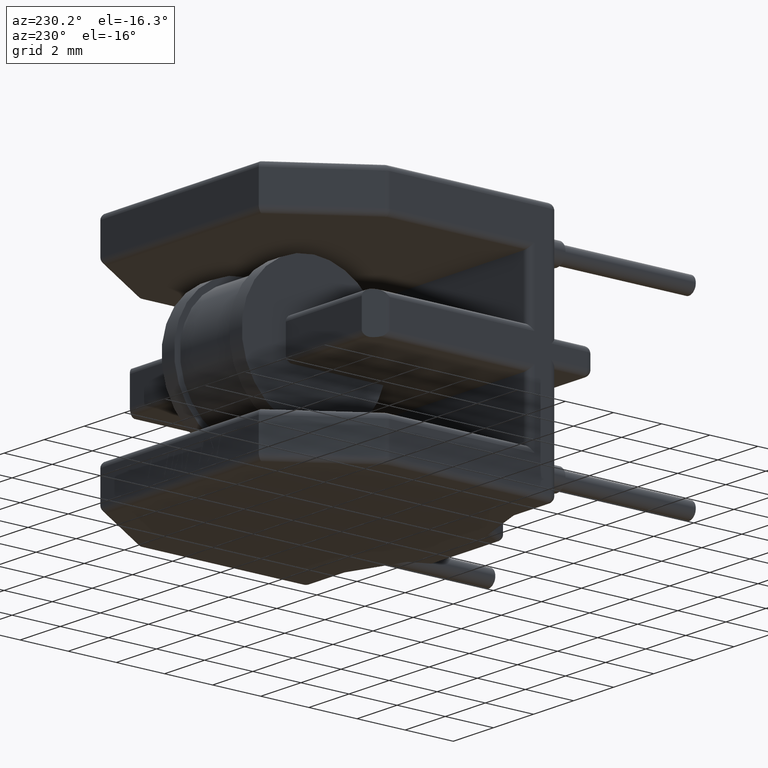
[diagram: clean part render]
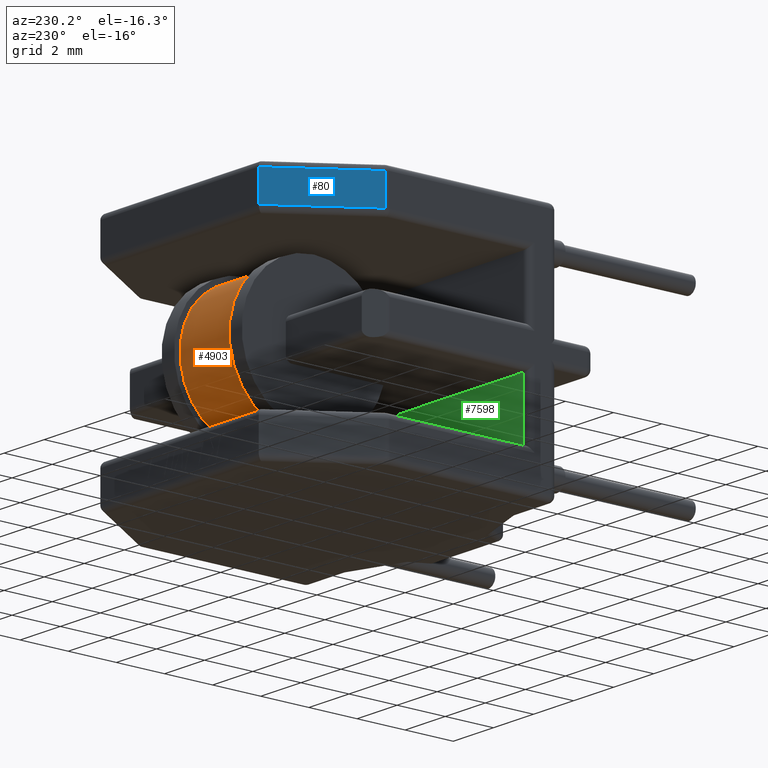
[diagram: same view with three faces highlighted in distinct colors, each labeled with its STEP entity id]
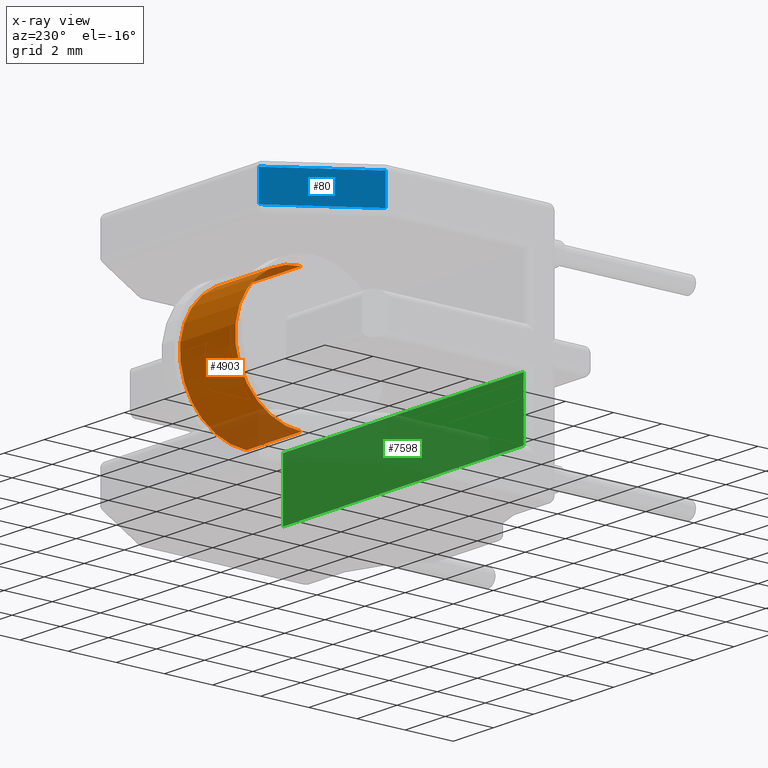
[diagram: x-ray of the same camera — body ghosted, the three highlighted faces saturated]
A machine part, auxiliary view with three faces highlighted in distinct colors.
The next image is the same camera in x-ray (body ghosted, the three faces saturated) — at least one of them is partly hidden behind the body in this view.
Their STEP definitions:

[orange] entity #4903 — the highlighted cylindrical surface (partial cylindrical patch) has radius 2.7545 mm, axis along (-1, -0, -0).
#171 = DIRECTION ( 'NONE',  ( -1.000000000000000000, -0.0000000000000000000, -0.0000000000000000000 ) ) ;
#381 = CARTESIAN_POINT ( 'NONE',  ( 7.624782905637799100, 6.581716576675943600, -5.000000000000000000 ) ) ;
#682 = AXIS2_PLACEMENT_3D ( 'NONE', #381, #3668, #6276 ) ;
#764 = EDGE_CURVE ( 'NONE', #2380, #4618, #3348, .T. ) ;
#827 = DIRECTION ( 'NONE',  ( 0.0000000000000000000, 0.0000000000000000000, 1.000000000000000000 ) ) ;
#853 = ORIENTED_EDGE ( 'NONE', *, *, #6612, .T. ) ;
#1464 = VERTEX_POINT ( 'NONE', #2863 ) ;
#1484 = VECTOR ( 'NONE', #6370, 1000.000000000000000 ) ;
#2287 = ORIENTED_EDGE ( 'NONE', *, *, #3320, .T. ) ;
#2340 = EDGE_CURVE ( 'NONE', #3090, #2380, #7798, .T. ) ;
#2378 = CYLINDRICAL_SURFACE ( 'NONE', #4887, 2.754477368955190000 ) ;
#2380 = VERTEX_POINT ( 'NONE', #2767 ) ;
#2767 = CARTESIAN_POINT ( 'NONE',  ( 4.875217094362201700, 6.581716576675943600, -2.245522631044810000 ) ) ;
#2863 = CARTESIAN_POINT ( 'NONE',  ( 7.624782905637799100, 6.581716576675943600, -7.754477368955190500 ) ) ;
#3090 = VERTEX_POINT ( 'NONE', #6807 ) ;
#3320 = EDGE_CURVE ( 'NONE', #1464, #4618, #6935, .T. ) ;
#3348 = CIRCLE ( 'NONE', #7380, 2.754477368955190000 ) ;
#3668 = DIRECTION ( 'NONE',  ( -1.000000000000000000, -0.0000000000000000000, -0.0000000000000000000 ) ) ;
#3799 = CARTESIAN_POINT ( 'NONE',  ( 4.249999999999999100, 6.581716576675943600, -5.000000000000000000 ) ) ;
#4048 = CARTESIAN_POINT ( 'NONE',  ( 4.875217094362201700, 6.581716576675943600, -5.000000000000000000 ) ) ;
#4448 = DIRECTION ( 'NONE',  ( -1.000000000000000000, -0.0000000000000000000, -0.0000000000000000000 ) ) ;
#4507 = ORIENTED_EDGE ( 'NONE', *, *, #764, .F. ) ;
#4523 = CARTESIAN_POINT ( 'NONE',  ( 4.249999999999999100, 6.581716576675943600, -7.754477368955190500 ) ) ;
#4618 = VERTEX_POINT ( 'NONE', #8179 ) ;
#4887 = AXIS2_PLACEMENT_3D ( 'NONE', #3799, #4448, #5785 ) ;
#4903 = ADVANCED_FACE ( 'NONE', ( #6212 ), #2378, .T. ) ;
#4964 = EDGE_LOOP ( 'NONE', ( #853, #2287, #4507, #6289 ) ) ;
#5785 = DIRECTION ( 'NONE',  ( 0.0000000000000000000, 0.0000000000000000000, 1.000000000000000000 ) ) ;
#5888 = VECTOR ( 'NONE', #7951, 1000.000000000000000 ) ;
#6212 = FACE_OUTER_BOUND ( 'NONE', #4964, .T. ) ;
#6276 = DIRECTION ( 'NONE',  ( 0.0000000000000000000, 0.0000000000000000000, 1.000000000000000000 ) ) ;
#6289 = ORIENTED_EDGE ( 'NONE', *, *, #2340, .F. ) ;
#6370 = DIRECTION ( 'NONE',  ( -1.000000000000000000, -0.0000000000000000000, -0.0000000000000000000 ) ) ;
#6612 = EDGE_CURVE ( 'NONE', #3090, #1464, #7561, .T. ) ;
#6631 = CARTESIAN_POINT ( 'NONE',  ( 4.249999999999999100, 6.581716576675943600, -2.245522631044810000 ) ) ;
#6807 = CARTESIAN_POINT ( 'NONE',  ( 7.624782905637799100, 6.581716576675943600, -2.245522631044810000 ) ) ;
#6935 = LINE ( 'NONE', #4523, #1484 ) ;
#7380 = AXIS2_PLACEMENT_3D ( 'NONE', #4048, #171, #827 ) ;
#7561 = CIRCLE ( 'NONE', #682, 2.754477368955190000 ) ;
#7798 = LINE ( 'NONE', #6631, #5888 ) ;
#7951 = DIRECTION ( 'NONE',  ( -1.000000000000000000, -0.0000000000000000000, -0.0000000000000000000 ) ) ;
#8179 = CARTESIAN_POINT ( 'NONE',  ( 4.875217094362201700, 6.581716576675943600, -7.754477368955190500 ) ) ;

[blue] entity #80 — the highlighted planar face has unit normal (0.8322, -0.5545, 0).
#1 = DIRECTION ( 'NONE',  ( 0.0000000000000000000, 0.0000000000000000000, 1.000000000000000000 ) ) ;
#78 = ORIENTED_EDGE ( 'NONE', *, *, #6513, .T. ) ;
#80 = ADVANCED_FACE ( 'NONE', ( #2673 ), #1896, .F. ) ;
#127 = EDGE_CURVE ( 'NONE', #8311, #1173, #2865, .T. ) ;
#469 = LINE ( 'NONE', #3621, #1574 ) ;
#625 = DIRECTION ( 'NONE',  ( 0.8321611315352943600, -0.5545339044295657400, 0.0000000000000000000 ) ) ;
#639 = CARTESIAN_POINT ( 'NONE',  ( 5.488363584519022100E-016, 7.046741735803732500, -1.499999999999999600 ) ) ;
#758 = VERTEX_POINT ( 'NONE', #2731 ) ;
#1001 = EDGE_CURVE ( 'NONE', #1799, #758, #469, .T. ) ;
#1010 = DIRECTION ( 'NONE',  ( 0.5545339044295656300, 0.8321611315352942500, 0.0000000000000000000 ) ) ;
#1173 = VERTEX_POINT ( 'NONE', #7180 ) ;
#1574 = VECTOR ( 'NONE', #1, 1000.000000000000000 ) ;
#1799 = VERTEX_POINT ( 'NONE', #5986 ) ;
#1896 = PLANE ( 'NONE',  #2725 ) ;
#1957 = VECTOR ( 'NONE', #4488, 999.9999999999998900 ) ;
#2239 = VECTOR ( 'NONE', #7648, 1000.000000000000000 ) ;
#2673 = FACE_OUTER_BOUND ( 'NONE', #3676, .T. ) ;
#2725 = AXIS2_PLACEMENT_3D ( 'NONE', #7676, #625, #4503 ) ;
#2731 = CARTESIAN_POINT ( 'NONE',  ( 0.04195971711617662400, 7.109708572268342400, -0.2500000000000002200 ) ) ;
#2865 = LINE ( 'NONE', #7064, #2239 ) ;
#3621 = CARTESIAN_POINT ( 'NONE',  ( 0.04195971711617661700, 7.109708572268342400, -10.00000000000000000 ) ) ;
#3676 = EDGE_LOOP ( 'NONE', ( #5583, #78, #7625, #4185 ) ) ;
#3919 = VECTOR ( 'NONE', #1010, 999.9999999999998900 ) ;
#4185 = ORIENTED_EDGE ( 'NONE', *, *, #5388, .T. ) ;
#4488 = DIRECTION ( 'NONE',  ( -0.5545339044295656300, -0.8321611315352942500, 1.164382967957622100E-016 ) ) ;
#4503 = DIRECTION ( 'NONE',  ( 0.5545339044295656300, 0.8321611315352942500, 0.0000000000000000000 ) ) ;
#5388 = EDGE_CURVE ( 'NONE', #8311, #1799, #7904, .T. ) ;
#5583 = ORIENTED_EDGE ( 'NONE', *, *, #1001, .T. ) ;
#5863 = CARTESIAN_POINT ( 'NONE',  ( 2.301175476335262100, 10.50000000000000000, -1.500000000000001300 ) ) ;
#5986 = CARTESIAN_POINT ( 'NONE',  ( 0.04195971711617663100, 7.109708572268342400, -1.499999999999999600 ) ) ;
#6513 = EDGE_CURVE ( 'NONE', #758, #1173, #8221, .T. ) ;
#7064 = CARTESIAN_POINT ( 'NONE',  ( 2.301175476335262100, 10.50000000000000000, -10.00000000000000000 ) ) ;
#7180 = CARTESIAN_POINT ( 'NONE',  ( 2.301175476335262100, 10.50000000000000000, -0.2500000000000002200 ) ) ;
#7625 = ORIENTED_EDGE ( 'NONE', *, *, #127, .F. ) ;
#7648 = DIRECTION ( 'NONE',  ( -0.0000000000000000000, -0.0000000000000000000, 1.000000000000000000 ) ) ;
#7676 = CARTESIAN_POINT ( 'NONE',  ( 0.0000000000000000000, 7.046741735803731600, -10.00000000000000000 ) ) ;
#7904 = LINE ( 'NONE', #639, #1957 ) ;
#8088 = CARTESIAN_POINT ( 'NONE',  ( 0.0000000000000000000, 7.046741735803731600, -0.2500000000000002200 ) ) ;
#8221 = LINE ( 'NONE', #8088, #3919 ) ;
#8311 = VERTEX_POINT ( 'NONE', #5863 ) ;

[green] entity #7598 — the highlighted planar face has unit normal (0, -1, 0).
#60 = VERTEX_POINT ( 'NONE', #1870 ) ;
#516 = CARTESIAN_POINT ( 'NONE',  ( 0.2500000000000002200, 1.201709679751361800, -5.802854214772009000 ) ) ;
#618 = FACE_OUTER_BOUND ( 'NONE', #4690, .T. ) ;
#653 = CARTESIAN_POINT ( 'NONE',  ( 12.50000000000000000, 1.201709679751361800, -5.802854214772009000 ) ) ;
#1056 = CARTESIAN_POINT ( 'NONE',  ( 12.25000000000000000, 1.201709679751361300, -8.249999999999996400 ) ) ;
#1231 = DIRECTION ( 'NONE',  ( 0.0000000000000000000, 1.772190572429660100E-016, 1.000000000000000000 ) ) ;
#1429 = ORIENTED_EDGE ( 'NONE', *, *, #5048, .T. ) ;
#1870 = CARTESIAN_POINT ( 'NONE',  ( 0.2500000000000002200, 1.201709679751361300, -8.249999999999996400 ) ) ;
#2159 = DIRECTION ( 'NONE',  ( 0.0000000000000000000, -1.000000000000000000, 1.772190572429660100E-016 ) ) ;
#2256 = EDGE_CURVE ( 'NONE', #6989, #4281, #6183, .T. ) ;
#2281 = EDGE_CURVE ( 'NONE', #6989, #7250, #4792, .T. ) ;
#2879 = CARTESIAN_POINT ( 'NONE',  ( 12.50000000000000000, 1.201709679751361800, -5.802854214772009000 ) ) ;
#3091 = VECTOR ( 'NONE', #8220, 1000.000000000000000 ) ;
#3168 = CARTESIAN_POINT ( 'NONE',  ( 0.2500000000000002200, 1.201709679751361800, -5.802854214772009000 ) ) ;
#3221 = EDGE_CURVE ( 'NONE', #7250, #60, #5003, .T. ) ;
#3466 = PLANE ( 'NONE',  #5874 ) ;
#3614 = VECTOR ( 'NONE', #1231, 1000.000000000000000 ) ;
#3986 = VECTOR ( 'NONE', #7789, 1000.000000000000000 ) ;
#4281 = VERTEX_POINT ( 'NONE', #516 ) ;
#4690 = EDGE_LOOP ( 'NONE', ( #7720, #6884, #7723, #1429 ) ) ;
#4792 = LINE ( 'NONE', #7173, #5498 ) ;
#5003 = LINE ( 'NONE', #5657, #3091 ) ;
#5048 = EDGE_CURVE ( 'NONE', #60, #4281, #7724, .T. ) ;
#5498 = VECTOR ( 'NONE', #7088, 1000.000000000000000 ) ;
#5657 = CARTESIAN_POINT ( 'NONE',  ( 12.50000000000000000, 1.201709679751361300, -8.249999999999996400 ) ) ;
#5874 = AXIS2_PLACEMENT_3D ( 'NONE', #2879, #2159, #7945 ) ;
#5916 = CARTESIAN_POINT ( 'NONE',  ( 12.25000000000000000, 1.201709679751361800, -5.802854214772009000 ) ) ;
#6183 = LINE ( 'NONE', #653, #3986 ) ;
#6884 = ORIENTED_EDGE ( 'NONE', *, *, #2281, .T. ) ;
#6989 = VERTEX_POINT ( 'NONE', #5916 ) ;
#7088 = DIRECTION ( 'NONE',  ( -0.0000000000000000000, -1.772190572429660100E-016, -1.000000000000000000 ) ) ;
#7173 = CARTESIAN_POINT ( 'NONE',  ( 12.25000000000000000, 1.201709679751361800, -5.802854214772009000 ) ) ;
#7250 = VERTEX_POINT ( 'NONE', #1056 ) ;
#7598 = ADVANCED_FACE ( 'NONE', ( #618 ), #3466, .F. ) ;
#7720 = ORIENTED_EDGE ( 'NONE', *, *, #2256, .F. ) ;
#7723 = ORIENTED_EDGE ( 'NONE', *, *, #3221, .T. ) ;
#7724 = LINE ( 'NONE', #3168, #3614 ) ;
#7789 = DIRECTION ( 'NONE',  ( -1.000000000000000000, -0.0000000000000000000, -0.0000000000000000000 ) ) ;
#7945 = DIRECTION ( 'NONE',  ( 0.0000000000000000000, -1.772190572429660100E-016, -1.000000000000000000 ) ) ;
#8220 = DIRECTION ( 'NONE',  ( -1.000000000000000000, -0.0000000000000000000, -0.0000000000000000000 ) ) ;